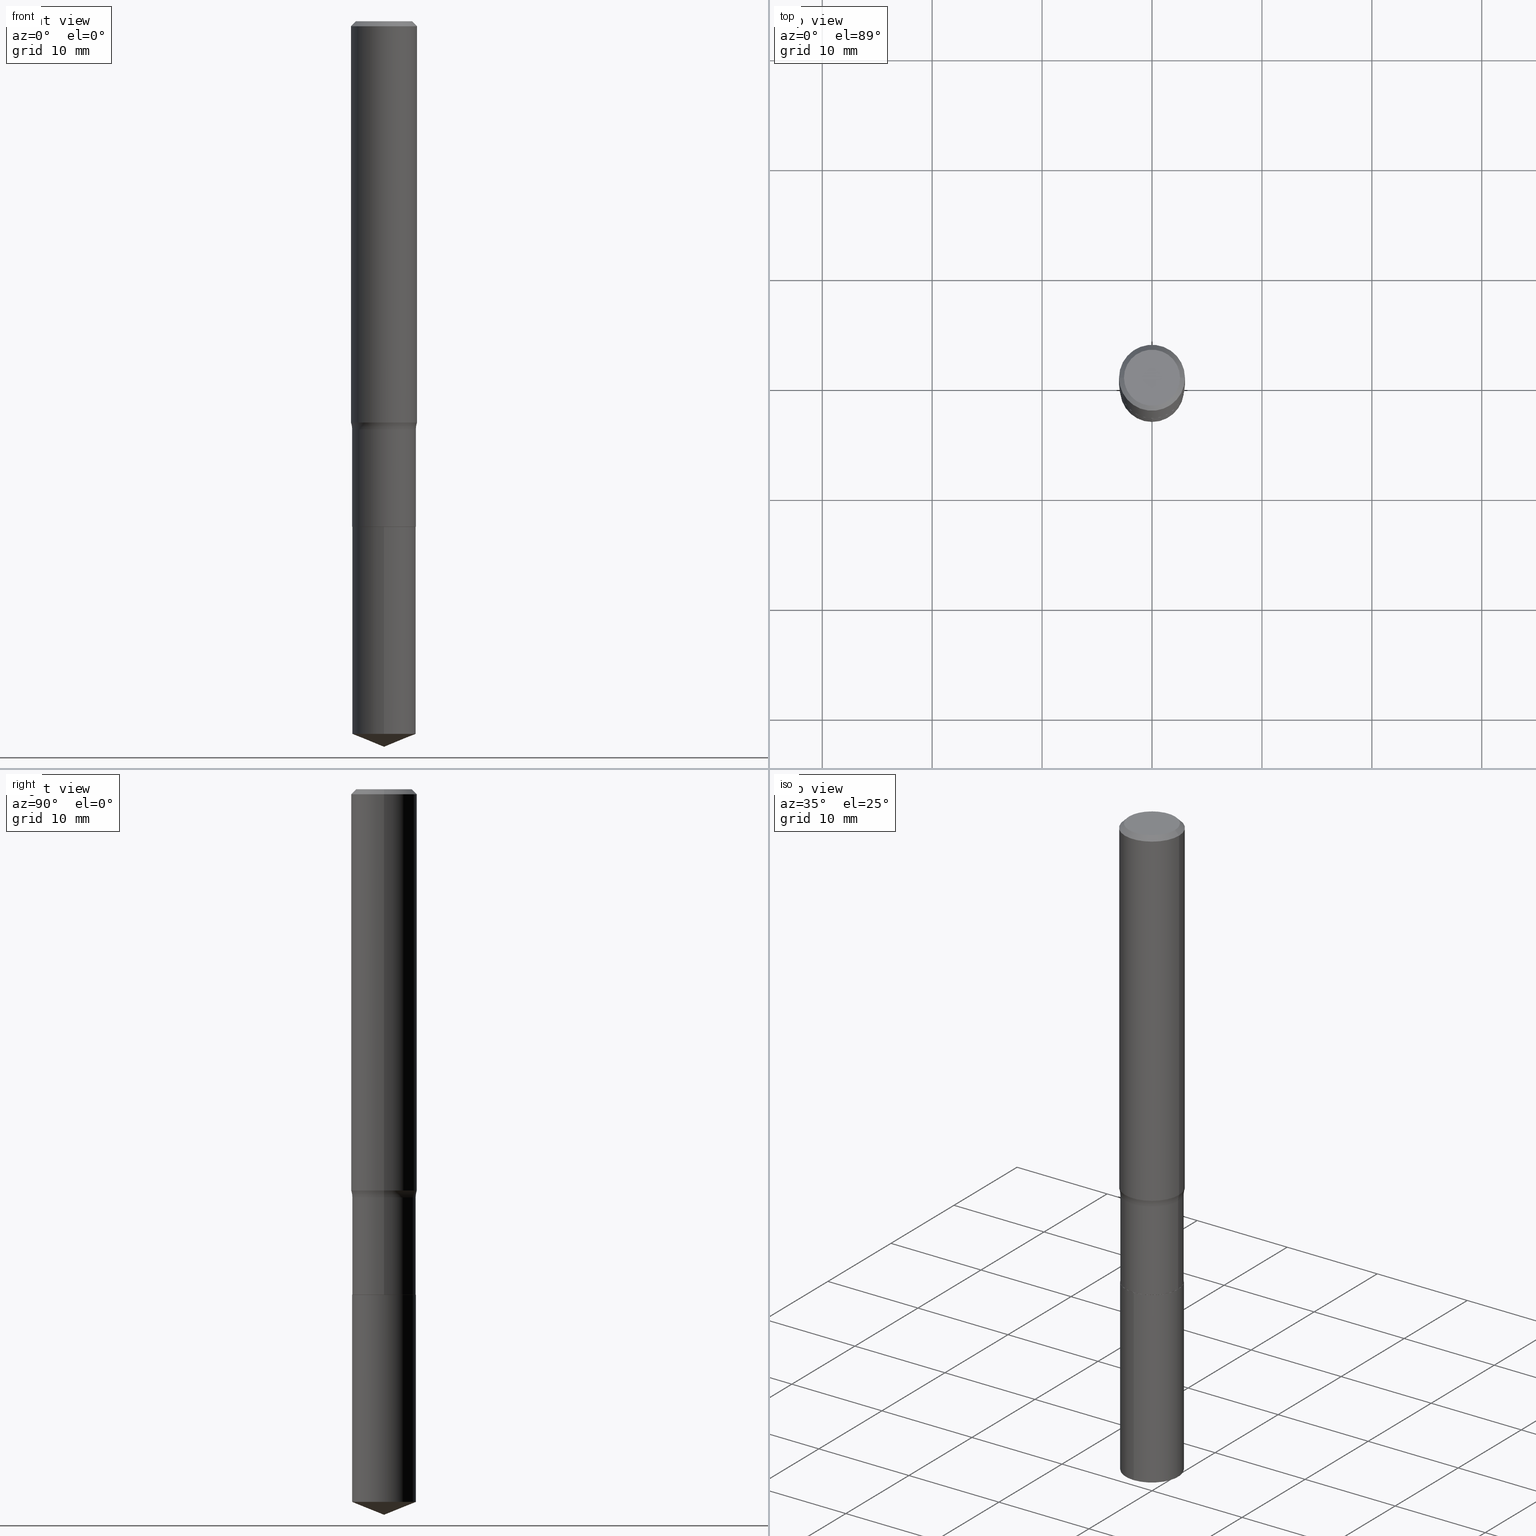
[diagram: canonical four-view strip — front | top / right | iso, engineering-drawing reading convention]
A machine part, canonical four-view strip (front | top / right | iso — engineering-drawing reading convention). The complete STEP part file that produces these views, byte-faithful:
ISO-10303-21;
HEADER;
FILE_DESCRIPTION (( 'STEP AP203' ),
    '1' );
FILE_NAME ('69148.STEP',
    '2024-04-19T17:17:21',
    ( '' ),
    ( '' ),
    'SwSTEP 2.0',
    'SolidWorks 2023',
    '' );
FILE_SCHEMA (( 'CONFIG_CONTROL_DESIGN' ));
ENDSEC;

DATA;
#1 = ORIENTED_EDGE ( 'NONE', *, *, #380, .F. ) ;
#2 = DIRECTION ( 'NONE',  ( 0.7071067811866199593, -2.468850131083015945E-15, 0.7071067811864750752 ) ) ;
#3 = DIRECTION ( 'NONE',  ( 1.000000000000000000, -6.982962677686269077E-15, 0.000000000000000000 ) ) ;
#4 = EDGE_CURVE ( 'NONE', #167, #362, #149, .T. ) ;
#5 = ORIENTED_EDGE ( 'NONE', *, *, #144, .F. ) ;
#6 = CARTESIAN_POINT ( 'NONE',  ( 3.507850874923593654E-46, -5.008281372579124849E-32, -1.434428795841294606E-17 ) ) ;
#7 = ORIENTED_EDGE ( 'NONE', *, *, #485, .T. ) ;
#8 = DESIGN_CONTEXT ( 'detailed design', #341, 'design' ) ;
#9 = ORIENTED_EDGE ( 'NONE', *, *, #208, .T. ) ;
#10 = CARTESIAN_POINT ( 'NONE',  ( 4.427521273598189436E-29, -6.321326963975514491E-15, -1.810499999999999998 ) ) ;
#11 = ORIENTED_EDGE ( 'NONE', *, *, #485, .F. ) ;
#12 = ORIENTED_EDGE ( 'NONE', *, *, #22, .F. ) ;
#13 = CARTESIAN_POINT ( 'NONE',  ( 0.1136500000000000010, -7.116686412963979916E-15, -1.810999999999999943 ) ) ;
#14 = ORIENTED_EDGE ( 'NONE', *, *, #77, .T. ) ;
#15 = PRODUCT ( '69148', '69148', '', ( #99 ) ) ;
#16 = VECTOR ( 'NONE', #481, 39.37007874015748854 ) ;
#17 = AXIS2_PLACEMENT_3D ( 'NONE', #92, #156, #42 ) ;
#18 =( NAMED_UNIT ( * ) PLANE_ANGLE_UNIT ( ) SI_UNIT ( $, .RADIAN. ) );
#19 = EDGE_CURVE ( 'NONE', #165, #320, #316, .T. ) ;
#20 = DIRECTION ( 'NONE',  ( -2.445468806185136877E-29, 3.491481338843145188E-15, 1.000000000000000000 ) ) ;
#21 = COORDINATED_UNIVERSAL_TIME_OFFSET ( 5, 0, .BEHIND. ) ;
#22 = EDGE_CURVE ( 'NONE', #231, #83, #275, .T. ) ;
#23 = LINE ( 'NONE', #477, #330 ) ;
#24 = DATE_TIME_ROLE ( 'creation_date' ) ;
#25 = APPROVAL ( #146, 'UNSPECIFIED' ) ;
#26 = AXIS2_PLACEMENT_3D ( 'NONE', #31, #220, #114 ) ;
#27 = DIRECTION ( 'NONE',  ( -2.431437355357483089E-29, 3.511575175048929728E-15, 1.000000000000000000 ) ) ;
#28 = CYLINDRICAL_SURFACE ( 'NONE', #239, 0.1141500000000000015 ) ;
#29 = DIRECTION ( 'NONE',  ( 1.000000000000000000, -6.982962677686266711E-15, 4.875668750515085695E-29 ) ) ;
#30 = AXIS2_PLACEMENT_3D ( 'NONE', #142, #336, #151 ) ;
#31 = CARTESIAN_POINT ( 'NONE',  ( 4.332147990156996744E-31, -6.185159191760670395E-17, -0.01771500000000010913 ) ) ;
#32 = LOCAL_TIME ( 13, 17, 21.00000000000000000, #374 ) ;
#33 = DIRECTION ( 'NONE',  ( -2.445468806185136597E-29, 3.491481338843145583E-15, 1.000000000000000000 ) ) ;
#34 = DIRECTION ( 'NONE',  ( -2.445468806185136597E-29, 3.491481338843145583E-15, 1.000000000000000000 ) ) ;
#35 = ORIENTED_EDGE ( 'NONE', *, *, #370, .F. ) ;
#36 = CIRCLE ( 'NONE', #302, 0.1003850000000000159 ) ;
#37 = CARTESIAN_POINT ( 'NONE',  ( 4.428744008001282238E-29, -6.323072704644935995E-15, -1.810999999999999943 ) ) ;
#38 = PLANE ( 'NONE',  #357 ) ;
#39 = ORIENTED_EDGE ( 'NONE', *, *, #169, .F. ) ;
#40 = CARTESIAN_POINT ( 'NONE',  ( 4.428744008001282238E-29, -6.323072704644935995E-15, -1.810999999999999943 ) ) ;
#41 = ORIENTED_EDGE ( 'NONE', *, *, #334, .F. ) ;
#42 = DIRECTION ( 'NONE',  ( 1.000000000000000000, -6.982962677686266711E-15, 4.876176775795935793E-29 ) ) ;
#43 = CARTESIAN_POINT ( 'NONE',  ( 3.514854974773711668E-29, -5.018281370886292048E-15, -1.437292909189378687 ) ) ;
#44 = ORIENTED_EDGE ( 'NONE', *, *, #190, .F. ) ;
#45 = CONICAL_SURFACE ( 'NONE', #304, 0.1136500000000000010, 0.7853981633975507526 ) ;
#46 = ORIENTED_EDGE ( 'NONE', *, *, #75, .F. ) ;
#47 = ADVANCED_FACE ( 'NONE', ( #145 ), #329, .T. ) ;
#48 = LINE ( 'NONE', #396, #168 ) ;
#49 = PERSON ( 'UNSPECIFIED', 'UNSPECIFIED', 'UNSPECIFIED', ('UNSPECIFIED'), ('UNSPECIFIED'), ('UNSPECIFIED') ) ;
#50 = ADVANCED_FACE ( 'NONE', ( #68 ), #411, .T. ) ;
#51 = ORIENTED_EDGE ( 'NONE', *, *, #367, .T. ) ;
#52 = APPROVAL_STATUS ( 'not_yet_approved' ) ;
#53 = DATE_AND_TIME ( #254, #462 ) ;
#54 = AXIS2_PLACEMENT_3D ( 'NONE', #211, #113, #175 ) ;
#55 = AXIS2_PLACEMENT_3D ( 'NONE', #381, #33, #345 ) ;
#56 = PERSON_AND_ORGANIZATION ( #49, #313 ) ;
#57 = CARTESIAN_POINT ( 'NONE',  ( -8.938262235057461474E-28, 1.291629041461802011E-13, 36.77167874015748339 ) ) ;
#58 = CC_DESIGN_PERSON_AND_ORGANIZATION_ASSIGNMENT ( #475, #406, ( #15 ) ) ;
#59 = ORIENTED_EDGE ( 'NONE', *, *, #412, .T. ) ;
#60 = DIRECTION ( 'NONE',  ( -2.445468806185136597E-29, 3.491481338843145583E-15, 1.000000000000000000 ) ) ;
#61 = DIRECTION ( 'NONE',  ( -2.445468806185136597E-29, 3.491481338843145583E-15, 1.000000000000000000 ) ) ;
#62 = CARTESIAN_POINT ( 'NONE',  ( 0.1141499999999999598, -7.971051896578870271E-16, 5.566155789571058785E-30 ) ) ;
#63 = PERSON_AND_ORGANIZATION_ROLE ( 'classification_officer' ) ;
#64 = FACE_OUTER_BOUND ( 'NONE', #309, .T. ) ;
#65 = DIMENSIONAL_EXPONENTS ( 1.000000000000000000, 0.000000000000000000, 0.000000000000000000, 0.000000000000000000, 0.000000000000000000, 0.000000000000000000, 0.000000000000000000 ) ;
#66 = AXIS2_PLACEMENT_3D ( 'NONE', #152, #181, #339 ) ;
#67 = AXIS2_PLACEMENT_3D ( 'NONE', #126, #426, #120 ) ;
#68 = FACE_OUTER_BOUND ( 'NONE', #134, .T. ) ;
#69 = DIRECTION ( 'NONE',  ( -6.982962677686265922E-15, -1.000000000000000000, 4.786417860121354194E-15 ) ) ;
#70 = FACE_OUTER_BOUND ( 'NONE', #243, .T. ) ;
#71 = DIRECTION ( 'NONE',  ( -0.7071067811866199593, 7.493145998870616062E-15, 0.7071067811864750752 ) ) ;
#72 = ORIENTED_EDGE ( 'NONE', *, *, #318, .F. ) ;
#73 = CIRCLE ( 'NONE', #187, 0.1181000000000001632 ) ;
#74 = LOCAL_TIME ( 13, 17, 21.00000000000000000, #436 ) ;
#75 = EDGE_CURVE ( 'NONE', #91, #199, #288, .T. ) ;
#76 = DIRECTION ( 'NONE',  ( -6.982962677686264344E-15, -1.000000000000000000, 2.393208930060677491E-15 ) ) ;
#77 = EDGE_CURVE ( 'NONE', #236, #201, #36, .T. ) ;
#78 = AXIS2_PLACEMENT_3D ( 'NONE', #193, #124, #433 ) ;
#79 = VECTOR ( 'NONE', #20, 39.37007874015748143 ) ;
#80 = DIRECTION ( 'NONE',  ( 1.000000000000000000, -6.982962677686266711E-15, 4.876176775795936353E-29 ) ) ;
#81 = CARTESIAN_POINT ( 'NONE',  ( -8.938262235057461474E-28, 1.291629041461802011E-13, 36.77167874015748339 ) ) ;
#82 = ORIENTED_EDGE ( 'NONE', *, *, #472, .T. ) ;
#83 = VERTEX_POINT ( 'NONE', #250 ) ;
#84 = DIRECTION ( 'NONE',  ( 2.431437355357483089E-29, -3.511575175048929728E-15, -1.000000000000000000 ) ) ;
#85 = FACE_OUTER_BOUND ( 'NONE', #191, .T. ) ;
#86 = CYLINDRICAL_SURFACE ( 'NONE', #78, 0.1141500000000000015 ) ;
#87 = VERTEX_POINT ( 'NONE', #298 ) ;
#88 = CC_DESIGN_DATE_AND_TIME_ASSIGNMENT ( #333, #244, ( #257 ) ) ;
#89 = FACE_OUTER_BOUND ( 'NONE', #459, .T. ) ;
#90 = CARTESIAN_POINT ( 'NONE',  ( 4.428744008001282238E-29, -6.323072704644935995E-15, -1.810999999999999943 ) ) ;
#91 = VERTEX_POINT ( 'NONE', #219 ) ;
#92 = CARTESIAN_POINT ( 'NONE',  ( 0.000000000000000000, 0.000000000000000000, 0.000000000000000000 ) ) ;
#93 = CIRCLE ( 'NONE', #216, 0.1141500000000000015 ) ;
#94 = ORIENTED_EDGE ( 'NONE', *, *, #185, .F. ) ;
#95 = ORIENTED_EDGE ( 'NONE', *, *, #491, .F. ) ;
#96 = AXIS2_PLACEMENT_3D ( 'NONE', #43, #310, #460 ) ;
#97 = CARTESIAN_POINT ( 'NONE',  ( 6.317846824160882656E-29, -9.124476934847141705E-15, -2.598399999999999821 ) ) ;
#98 = ORIENTED_EDGE ( 'NONE', *, *, #449, .F. ) ;
#99 = MECHANICAL_CONTEXT ( 'NONE', #482, 'mechanical' ) ;
#100 = UNCERTAINTY_MEASURE_WITH_UNIT (LENGTH_MEASURE( 1.000000000000000082E-05 ), #251, 'distance_accuracy_value', 'NONE');
#101 =( NAMED_UNIT ( * ) SI_UNIT ( $, .STERADIAN. ) SOLID_ANGLE_UNIT ( ) );
#102 = CARTESIAN_POINT ( 'NONE',  ( 0.1136500000000000010, -7.116686412963979916E-15, -1.810999999999999943 ) ) ;
#103 = APPROVAL_DATE_TIME ( #204, #25 ) ;
#104 = CIRCLE ( 'NONE', #439, 0.1141500000000000015 ) ;
#105 = CARTESIAN_POINT ( 'NONE',  ( 3.574786300881431790E-29, -5.103847421120908993E-15, -1.461799999999999766 ) ) ;
#106 = AXIS2_PLACEMENT_3D ( 'NONE', #359, #163, #317 ) ;
#107 = DIRECTION ( 'NONE',  ( -6.474490251793195195E-15, -0.9271838545667886455, 0.3746065934159090727 ) ) ;
#108 = ORIENTED_EDGE ( 'NONE', *, *, #412, .F. ) ;
#109 = SHAPE_DEFINITION_REPRESENTATION ( #135, #413 ) ;
#110 = DIRECTION ( 'NONE',  ( 1.000000000000000000, 0.000000000000000000, 0.000000000000000000 ) ) ;
#111 = ADVANCED_FACE ( 'NONE', ( #448 ), #476, .T. ) ;
#112 = CARTESIAN_POINT ( 'NONE',  ( 8.110845328702167912E-16, 0.1141499999999911197, -2.552280406320917905 ) ) ;
#113 = DIRECTION ( 'NONE',  ( -2.445468806185136597E-29, 3.491481338843145583E-15, 1.000000000000000000 ) ) ;
#114 = DIRECTION ( 'NONE',  ( -1.000000000000000000, 6.982962677686266711E-15, 0.000000000000000000 ) ) ;
#115 = DIRECTION ( 'NONE',  ( -2.431437355357483089E-29, 3.511575175048930123E-15, 1.000000000000000000 ) ) ;
#116 = ADVANCED_FACE ( 'NONE', ( #375 ), #28, .T. ) ;
#117 = DIRECTION ( 'NONE',  ( 1.000000000000000000, -6.982962677686264344E-15, 0.000000000000000000 ) ) ;
#118 = DIRECTION ( 'NONE',  ( -6.982962677686265922E-15, -1.000000000000000000, 4.786417860121354194E-15 ) ) ;
#119 = EDGE_LOOP ( 'NONE', ( #12, #478, #238, #95 ) ) ;
#120 = DIRECTION ( 'NONE',  ( 1.000000000000000000, -6.982962677686268288E-15, 0.000000000000000000 ) ) ;
#121 = ORIENTED_EDGE ( 'NONE', *, *, #308, .F. ) ;
#122 = VECTOR ( 'NONE', #467, 39.37007874015748143 ) ;
#123 = AXIS2_PLACEMENT_3D ( 'NONE', #325, #444, #110 ) ;
#124 = DIRECTION ( 'NONE',  ( -2.431437355357483089E-29, 3.511575175048930123E-15, 1.000000000000000000 ) ) ;
#125 = CARTESIAN_POINT ( 'NONE',  ( 0.1181000000000000799, -8.246878922347486570E-16, 5.758764772215004644E-30 ) ) ;
#126 = CARTESIAN_POINT ( 'NONE',  ( 3.574786300881431790E-29, -5.103847421120908993E-15, -1.461799999999999766 ) ) ;
#127 = CARTESIAN_POINT ( 'NONE',  ( 0.1141499999999999460, -5.900952610778795922E-15, -1.461799999999999766 ) ) ;
#128 = ORIENTED_EDGE ( 'NONE', *, *, #464, .T. ) ;
#129 = CARTESIAN_POINT ( 'NONE',  ( 0.000000000000000000, 0.000000000000000000, 0.000000000000000000 ) ) ;
#130 = ORIENTED_EDGE ( 'NONE', *, *, #449, .T. ) ;
#131 = APPROVAL ( #287, 'UNSPECIFIED' ) ;
#132 = CARTESIAN_POINT ( 'NONE',  ( 0.1180999999999999966, -8.865394841523547570E-16, -0.01771500000000010913 ) ) ;
#133 = CC_DESIGN_APPROVAL ( #131, ( #466 ) ) ;
#134 = EDGE_LOOP ( 'NONE', ( #205, #455, #458, #431 ) ) ;
#135 = PRODUCT_DEFINITION_SHAPE ( 'NONE', 'NONE',  #466 ) ;
#136 = ORIENTED_EDGE ( 'NONE', *, *, #284, .F. ) ;
#137 = DIRECTION ( 'NONE',  ( -6.982962677686264344E-15, -1.000000000000000000, 2.393208930060677491E-15 ) ) ;
#138 = ORIENTED_EDGE ( 'NONE', *, *, #308, .T. ) ;
#139 = COORDINATED_UNIVERSAL_TIME_OFFSET ( 5, 0, .BEHIND. ) ;
#140 = AXIS2_PLACEMENT_3D ( 'NONE', #279, #352, #390 ) ;
#141 = CC_DESIGN_SECURITY_CLASSIFICATION ( #257, ( #379 ) ) ;
#142 = CARTESIAN_POINT ( 'NONE',  ( -0.1921499999999999597, -3.738539554357876969E-15, -1.461799999999999766 ) ) ;
#143 = PERSON_AND_ORGANIZATION ( #49, #313 ) ;
#144 = EDGE_CURVE ( 'NONE', #165, #231, #73, .T. ) ;
#145 = FACE_OUTER_BOUND ( 'NONE', #186, .T. ) ;
#146 = APPROVAL_STATUS ( 'not_yet_approved' ) ;
#147 = CARTESIAN_POINT ( 'NONE',  ( -0.1141499999999999598, 8.110845328701540768E-16, -5.614964405525973270E-30 ) ) ;
#148 = MANIFOLD_SOLID_BREP ( 'Body-Move/Copy2[2]', #280 ) ;
#149 = CIRCLE ( 'NONE', #182, 0.1141500000000000015 ) ;
#150 = AXIS2_PLACEMENT_3D ( 'NONE', #264, #34, #492 ) ;
#151 = DIRECTION ( 'NONE',  ( -1.000000000000000000, 7.105427357601005014E-15, 0.000000000000000000 ) ) ;
#152 = CARTESIAN_POINT ( 'NONE',  ( 3.574786300881431790E-29, -5.103847421120908993E-15, -1.461799999999999766 ) ) ;
#153 = DIRECTION ( 'NONE',  ( 1.000000000000000000, -6.982962677686270655E-15, 0.000000000000000000 ) ) ;
#154 = AXIS2_PLACEMENT_3D ( 'NONE', #343, #451, #415 ) ;
#155 = ORIENTED_EDGE ( 'NONE', *, *, #213, .T. ) ;
#156 = DIRECTION ( 'NONE',  ( -2.445468806185136597E-29, 3.491481338843145583E-15, 1.000000000000000000 ) ) ;
#157 = DIRECTION ( 'NONE',  ( -1.000000000000000000, 6.982962677686266711E-15, 0.000000000000000000 ) ) ;
#158 = ORIENTED_EDGE ( 'NONE', *, *, #208, .F. ) ;
#159 = APPROVAL_PERSON_ORGANIZATION ( #408, #25, #400 ) ;
#160 = DIRECTION ( 'NONE',  ( -1.000000000000000000, 6.982962677686265922E-15, -4.876176775795935793E-29 ) ) ;
#161 = CARTESIAN_POINT ( 'NONE',  ( 4.428744008001282238E-29, -6.323072704644935995E-15, -1.810999999999999943 ) ) ;
#162 = ADVANCED_FACE ( 'NONE', ( #64 ), #365, .F. ) ;
#163 = DIRECTION ( 'NONE',  ( -2.445468806185136597E-29, 3.491481338843145583E-15, 1.000000000000000000 ) ) ;
#164 = EDGE_LOOP ( 'NONE', ( #1, #155, #429, #354 ) ) ;
#165 = VERTEX_POINT ( 'NONE', #409 ) ;
#166 = CARTESIAN_POINT ( 'NONE',  ( 4.428744008001282238E-29, -6.323072704644935995E-15, -1.810999999999999943 ) ) ;
#167 = VERTEX_POINT ( 'NONE', #486 ) ;
#168 = VECTOR ( 'NONE', #188, 39.37007874015748143 ) ;
#169 = EDGE_CURVE ( 'NONE', #278, #382, #405, .T. ) ;
#170 = DATE_AND_TIME ( #437, #402 ) ;
#171 = APPROVAL_ROLE ( '' ) ;
#172 = DIRECTION ( 'NONE',  ( -6.982962677686265133E-15, -1.000000000000000000, 3.498761904101767999E-15 ) ) ;
#173 = APPLICATION_PROTOCOL_DEFINITION ( 'international standard', 'config_control_design', 1994, #482 ) ;
#174 = VECTOR ( 'NONE', #376, 39.37007874015748143 ) ;
#175 = DIRECTION ( 'NONE',  ( 1.000000000000000000, -6.982962677686266711E-15, 4.876176775795935793E-29 ) ) ;
#176 = DIRECTION ( 'NONE',  ( -2.445468806185136597E-29, 3.491481338843145583E-15, 1.000000000000000000 ) ) ;
#177 = PERSON_AND_ORGANIZATION_ROLE ( 'design_supplier' ) ;
#178 = CC_DESIGN_PERSON_AND_ORGANIZATION_ASSIGNMENT ( #435, #63, ( #257 ) ) ;
#179 = DIRECTION ( 'NONE',  ( 1.000000000000000000, -6.982962677686269077E-15, 0.000000000000000000 ) ) ;
#180 = CARTESIAN_POINT ( 'NONE',  ( 4.428744008001282238E-29, -6.323072704644935995E-15, -1.810999999999999943 ) ) ;
#181 = DIRECTION ( 'NONE',  ( -2.445468806185136597E-29, 3.491481338843145583E-15, 1.000000000000000000 ) ) ;
#182 = AXIS2_PLACEMENT_3D ( 'NONE', #161, #463, #76 ) ;
#183 = VECTOR ( 'NONE', #27, 39.37007874015748143 ) ;
#184 = DIRECTION ( 'NONE',  ( -6.982962677686266711E-15, -1.000000000000000000, 3.491481338843145583E-15 ) ) ;
#185 = EDGE_CURVE ( 'NONE', #389, #199, #461, .T. ) ;
#186 = EDGE_LOOP ( 'NONE', ( #35, #286, #98 ) ) ;
#187 = AXIS2_PLACEMENT_3D ( 'NONE', #438, #337, #445 ) ;
#188 = DIRECTION ( 'NONE',  ( -2.431437355357483089E-29, 3.511575175048929728E-15, 1.000000000000000000 ) ) ;
#189 = CARTESIAN_POINT ( 'NONE',  ( -7.971051896578252001E-16, -0.1141500000000089804, -2.552280406320917017 ) ) ;
#190 = EDGE_CURVE ( 'NONE', #236, #320, #488, .T. ) ;
#191 = EDGE_LOOP ( 'NONE', ( #138, #232, #423, #72 ) ) ;
#192 = ORIENTED_EDGE ( 'NONE', *, *, #262, .T. ) ;
#193 = CARTESIAN_POINT ( 'NONE',  ( 4.428744008001282238E-29, -6.323072704644935995E-15, -1.810999999999999943 ) ) ;
#194 = ORIENTED_EDGE ( 'NONE', *, *, #22, .T. ) ;
#195 = VECTOR ( 'NONE', #2, 39.37007874015748143 ) ;
#196 = CC_DESIGN_DATE_AND_TIME_ASSIGNMENT ( #53, #24, ( #466 ) ) ;
#197 = CYLINDRICAL_SURFACE ( 'NONE', #106, 0.1181000000000000799 ) ;
#198 = DIRECTION ( 'NONE',  ( -6.982962677686264344E-15, -1.000000000000000000, 2.393208930060677491E-15 ) ) ;
#199 = VERTEX_POINT ( 'NONE', #218 ) ;
#200 = EDGE_CURVE ( 'NONE', #91, #292, #93, .T. ) ;
#201 = VERTEX_POINT ( 'NONE', #377 ) ;
#202 = VECTOR ( 'NONE', #384, 39.37007874015748854 ) ;
#203 = ORIENTED_EDGE ( 'NONE', *, *, #491, .T. ) ;
#204 = DATE_AND_TIME ( #246, #447 ) ;
#205 = ORIENTED_EDGE ( 'NONE', *, *, #480, .F. ) ;
#206 = SECURITY_CLASSIFICATION_LEVEL ( 'unclassified' ) ;
#207 = CARTESIAN_POINT ( 'NONE',  ( 6.369114387261840438E-29, -9.051697060109789399E-15, -2.598399999999999821 ) ) ;
#208 = EDGE_CURVE ( 'NONE', #231, #199, #430, .T. ) ;
#209 = ORIENTED_EDGE ( 'NONE', *, *, #185, .T. ) ;
#210 = PERSON_AND_ORGANIZATION ( #49, #313 ) ;
#211 = CARTESIAN_POINT ( 'NONE',  ( 0.000000000000000000, 0.000000000000000000, 0.000000000000000000 ) ) ;
#212 = LINE ( 'NONE', #372, #183 ) ;
#213 = EDGE_CURVE ( 'NONE', #382, #434, #323, .T. ) ;
#214 = AXIS2_PLACEMENT_3D ( 'NONE', #253, #61, #260 ) ;
#215 = APPROVAL_DATE_TIME ( #170, #131 ) ;
#216 = AXIS2_PLACEMENT_3D ( 'NONE', #259, #176, #117 ) ;
#217 = AXIS2_PLACEMENT_3D ( 'NONE', #340, #184, #153 ) ;
#218 = CARTESIAN_POINT ( 'NONE',  ( -0.1141499999999999460, -4.901502659678057961E-15, -1.461799999999999766 ) ) ;
#219 = CARTESIAN_POINT ( 'NONE',  ( -0.1141499999999999737, -4.901502659678057961E-15, -1.810499999999999998 ) ) ;
#220 = DIRECTION ( 'NONE',  ( 2.445468806185136597E-29, -3.491481338843145583E-15, -1.000000000000000000 ) ) ;
#221 = ADVANCED_FACE ( 'NONE', ( #446 ), #229, .F. ) ;
#222 = CARTESIAN_POINT ( 'NONE',  ( 7.015701749847187307E-46, -1.001656274515824970E-31, -2.868857591682589212E-17 ) ) ;
#223 = FACE_OUTER_BOUND ( 'NONE', #164, .T. ) ;
#224 = CONICAL_SURFACE ( 'NONE', #290, 0.1180999999999999966, 0.7853981633974456145 ) ;
#225 = APPROVAL_PERSON_ORGANIZATION ( #398, #285, #171 ) ;
#226 = ADVANCED_FACE ( 'NONE', ( #70 ), #378, .T. ) ;
#227 = ORIENTED_EDGE ( 'NONE', *, *, #472, .F. ) ;
#228 = CARTESIAN_POINT ( 'NONE',  ( -0.1180999999999999966, 7.628363003171413738E-16, -0.01771500000000010913 ) ) ;
#229 = TOROIDAL_SURFACE ( 'NONE', #214, 0.1921499999999999597, 0.07799999999999999989 ) ;
#230 = CIRCLE ( 'NONE', #67, 0.1141499999999999460 ) ;
#231 = VERTEX_POINT ( 'NONE', #332 ) ;
#232 = ORIENTED_EDGE ( 'NONE', *, *, #480, .T. ) ;
#233 = ADVANCED_FACE ( 'NONE', ( #223 ), #86, .T. ) ;
#234 = DIRECTION ( 'NONE',  ( 6.982962677686265922E-15, 1.000000000000000000, -3.511575175048929728E-15 ) ) ;
#235 = CARTESIAN_POINT ( 'NONE',  ( 6.231120878724535395E-29, -8.926134577231654880E-15, -2.552280406320917461 ) ) ;
#236 = VERTEX_POINT ( 'NONE', #242 ) ;
#237 = CARTESIAN_POINT ( 'NONE',  ( 8.110845328702166926E-16, 0.1141499999999936732, -1.811000000000000165 ) ) ;
#238 = ORIENTED_EDGE ( 'NONE', *, *, #19, .T. ) ;
#239 = AXIS2_PLACEMENT_3D ( 'NONE', #180, #296, #137 ) ;
#240 = DIRECTION ( 'NONE',  ( -2.445468806185136597E-29, 3.491481338843145583E-15, 1.000000000000000000 ) ) ;
#241 = ORIENTED_EDGE ( 'NONE', *, *, #274, .T. ) ;
#242 = CARTESIAN_POINT ( 'NONE',  ( 0.1003850000000000159, -7.803837484803599345E-16, -2.868857591682071522E-17 ) ) ;
#243 = EDGE_LOOP ( 'NONE', ( #44, #227, #59, #203 ) ) ;
#244 = DATE_TIME_ROLE ( 'classification_date' ) ;
#245 = EDGE_LOOP ( 'NONE', ( #322, #9, #355, #353 ) ) ;
#246 = CALENDAR_DATE ( 2024, 19, 4 ) ;
#247 = CC_DESIGN_APPROVAL ( #25, ( #379 ) ) ;
#248 = PERSON_AND_ORGANIZATION_ROLE ( 'creator' ) ;
#249 = APPROVAL_ROLE ( '' ) ;
#250 = CARTESIAN_POINT ( 'NONE',  ( -0.1180999999999999966, -1.700915510469269743E-15, -0.01771500000000010913 ) ) ;
#251 =( CONVERSION_BASED_UNIT ( 'INCH', #410 ) LENGTH_UNIT ( ) NAMED_UNIT ( #65 ) );
#252 = CC_DESIGN_PERSON_AND_ORGANIZATION_ASSIGNMENT ( #210, #248, ( #379 ) ) ;
#253 = CARTESIAN_POINT ( 'NONE',  ( 3.574786300881431790E-29, -5.103847421120908993E-15, -1.461799999999999766 ) ) ;
#254 = CALENDAR_DATE ( 2024, 19, 4 ) ;
#255 = DIRECTION ( 'NONE',  ( -2.445468806185136597E-29, 3.491481338843145583E-15, 1.000000000000000000 ) ) ;
#256 = AXIS2_PLACEMENT_3D ( 'NONE', #10, #276, #282 ) ;
#257 = SECURITY_CLASSIFICATION ( '', '', #206 ) ;
#258 = ADVANCED_FACE ( 'NONE', ( #272 ), #419, .F. ) ;
#259 = CARTESIAN_POINT ( 'NONE',  ( 4.427521273598189436E-29, -6.321326963975514491E-15, -1.810499999999999998 ) ) ;
#260 = DIRECTION ( 'NONE',  ( 1.000000000000000000, -6.982962677686265922E-15, 4.883557194083112901E-29 ) ) ;
#261 = LINE ( 'NONE', #305, #373 ) ;
#262 = EDGE_CURVE ( 'NONE', #362, #167, #104, .T. ) ;
#263 = CLOSED_SHELL ( 'NONE', ( #116, #47, #407, #233, #303 ) ) ;
#264 = CARTESIAN_POINT ( 'NONE',  ( 7.015701749847187307E-46, -1.001656274515824970E-31, -2.868857591682589212E-17 ) ) ;
#265 =( GEOMETRIC_REPRESENTATION_CONTEXT ( 3 ) GLOBAL_UNCERTAINTY_ASSIGNED_CONTEXT ( ( #100 ) ) GLOBAL_UNIT_ASSIGNED_CONTEXT ( ( #251, #18, #101 ) ) REPRESENTATION_CONTEXT ( 'NONE', 'WORKASPACE' ) );
#266 = CC_DESIGN_PERSON_AND_ORGANIZATION_ASSIGNMENT ( #56, #177, ( #379 ) ) ;
#267 = DIRECTION ( 'NONE',  ( -2.431437355357483089E-29, 3.511575175048930123E-15, 1.000000000000000000 ) ) ;
#268 = EDGE_LOOP ( 'NONE', ( #82, #14 ) ) ;
#269 = FACE_OUTER_BOUND ( 'NONE', #395, .T. ) ;
#270 = FACE_OUTER_BOUND ( 'NONE', #388, .T. ) ;
#271 = CIRCLE ( 'NONE', #55, 0.1180999999999999966 ) ;
#272 = FACE_OUTER_BOUND ( 'NONE', #268, .T. ) ;
#273 = DIRECTION ( 'NONE',  ( -6.982962677686265133E-15, -1.000000000000000000, 3.498761904101767999E-15 ) ) ;
#274 = EDGE_CURVE ( 'NONE', #292, #91, #479, .T. ) ;
#275 = LINE ( 'NONE', #342, #371 ) ;
#276 = DIRECTION ( 'NONE',  ( -2.445468806185136597E-29, 3.491481338843145583E-15, 1.000000000000000000 ) ) ;
#277 = PLANE ( 'NONE',  #291 ) ;
#278 = VERTEX_POINT ( 'NONE', #97 ) ;
#279 = CARTESIAN_POINT ( 'NONE',  ( 4.428744008001282238E-29, -6.323072704644935995E-15, -1.810999999999999943 ) ) ;
#280 = CLOSED_SHELL ( 'NONE', ( #416, #297, #364, #221, #327, #111, #162, #289, #226, #258, #399, #50 ) ) ;
#281 = APPROVAL_PERSON_ORGANIZATION ( #143, #131, #249 ) ;
#282 = DIRECTION ( 'NONE',  ( 1.000000000000000000, -6.982962677686264344E-15, 0.000000000000000000 ) ) ;
#283 = ORIENTED_EDGE ( 'NONE', *, *, #367, .F. ) ;
#284 = EDGE_CURVE ( 'NONE', #434, #167, #48, .T. ) ;
#285 = APPROVAL ( #52, 'UNSPECIFIED' ) ;
#286 = ORIENTED_EDGE ( 'NONE', *, *, #169, .T. ) ;
#287 = APPROVAL_STATUS ( 'not_yet_approved' ) ;
#288 = LINE ( 'NONE', #147, #174 ) ;
#289 = ADVANCED_FACE ( 'NONE', ( #424 ), #321, .T. ) ;
#290 = AXIS2_PLACEMENT_3D ( 'NONE', #349, #361, #157 ) ;
#291 = AXIS2_PLACEMENT_3D ( 'NONE', #90, #457, #454 ) ;
#292 = VERTEX_POINT ( 'NONE', #428 ) ;
#293 = PERSON_AND_ORGANIZATION_ROLE ( 'creator' ) ;
#294 = DIRECTION ( 'NONE',  ( -2.431437355357483089E-29, 3.511575175048930123E-15, 1.000000000000000000 ) ) ;
#295 = COORDINATED_UNIVERSAL_TIME_OFFSET ( 5, 0, .BEHIND. ) ;
#296 = DIRECTION ( 'NONE',  ( -2.431437355357483089E-29, 3.511575175048930123E-15, 1.000000000000000000 ) ) ;
#297 = ADVANCED_FACE ( 'NONE', ( #89 ), #224, .T. ) ;
#298 = CARTESIAN_POINT ( 'NONE',  ( -0.1136500000000000010, -5.512891658279470728E-15, -1.810999999999999943 ) ) ;
#299 = CIRCLE ( 'NONE', #150, 0.1003850000000000159 ) ;
#300 = DIRECTION ( 'NONE',  ( 1.000000000000000000, -6.982962677686265922E-15, 4.883557194083112901E-29 ) ) ;
#301 = CARTESIAN_POINT ( 'NONE',  ( 0.1180999999999999966, -8.720764054544245267E-16, -0.01771500000000010913 ) ) ;
#302 = AXIS2_PLACEMENT_3D ( 'NONE', #222, #443, #29 ) ;
#303 = ADVANCED_FACE ( 'NONE', ( #269 ), #38, .F. ) ;
#304 = AXIS2_PLACEMENT_3D ( 'NONE', #37, #350, #3 ) ;
#305 = CARTESIAN_POINT ( 'NONE',  ( -0.1136500000000000010, -5.515540885453581929E-15, -1.810999999999999943 ) ) ;
#306 = ORIENTED_EDGE ( 'NONE', *, *, #190, .T. ) ;
#307 = DIRECTION ( 'NONE',  ( -2.445468806185136597E-29, 3.491481338843145583E-15, 1.000000000000000000 ) ) ;
#308 = EDGE_CURVE ( 'NONE', #368, #87, #421, .T. ) ;
#309 = EDGE_LOOP ( 'NONE', ( #158, #5, #128, #209 ) ) ;
#310 = DIRECTION ( 'NONE',  ( -2.445468806185136597E-29, 3.491481338843145583E-15, 1.000000000000000000 ) ) ;
#311 = ORIENTED_EDGE ( 'NONE', *, *, #144, .T. ) ;
#312 = AXIS2_PLACEMENT_3D ( 'NONE', #484, #115, #69 ) ;
#313 = ORGANIZATION ( 'UNSPECIFIED', 'UNSPECIFIED', '' ) ;
#314 = LINE ( 'NONE', #13, #195 ) ;
#315 = MANIFOLD_SOLID_BREP ( 'Body-Move/Copy2[1]', #263 ) ;
#316 = LINE ( 'NONE', #125, #122 ) ;
#317 = DIRECTION ( 'NONE',  ( 1.000000000000000000, -6.982962677686266711E-15, 4.876176775795936353E-29 ) ) ;
#318 = EDGE_CURVE ( 'NONE', #368, #292, #314, .T. ) ;
#319 = ORIENTED_EDGE ( 'NONE', *, *, #4, .T. ) ;
#320 = VERTEX_POINT ( 'NONE', #132 ) ;
#321 = CYLINDRICAL_SURFACE ( 'NONE', #385, 0.1181000000000000799 ) ;
#322 = ORIENTED_EDGE ( 'NONE', *, *, #383, .F. ) ;
#323 = CIRCLE ( 'NONE', #312, 0.1141500000000000153 ) ;
#324 = ORIENTED_EDGE ( 'NONE', *, *, #77, .F. ) ;
#325 = CARTESIAN_POINT ( 'NONE',  ( 0.000000000000000000, 0.000000000000000000, 0.000000000000000000 ) ) ;
#326 = CARTESIAN_POINT ( 'NONE',  ( 4.428744008001282238E-29, -6.323072704644935995E-15, -1.810999999999999943 ) ) ;
#327 = ADVANCED_FACE ( 'NONE', ( #356 ), #465, .T. ) ;
#328 = CALENDAR_DATE ( 2024, 19, 4 ) ;
#329 = CONICAL_SURFACE ( 'NONE', #452, 97.44436430773008340, 1.186823891356150851 ) ;
#330 = VECTOR ( 'NONE', #107, 39.37007874015748143 ) ;
#331 = APPROVAL_DATE_TIME ( #442, #285 ) ;
#332 = CARTESIAN_POINT ( 'NONE',  ( -0.1181000000000001354, -4.179130399953612273E-15, -1.437292909189378687 ) ) ;
#333 = DATE_AND_TIME ( #369, #32 ) ;
#334 = EDGE_CURVE ( 'NONE', #87, #368, #490, .T. ) ;
#335 =( LENGTH_UNIT ( ) NAMED_UNIT ( * ) SI_UNIT ( $, .METRE. ) );
#336 = DIRECTION ( 'NONE',  ( 7.105427357601001859E-15, 1.000000000000000000, -3.491481338843145583E-15 ) ) ;
#337 = DIRECTION ( 'NONE',  ( -2.445468806185136597E-29, 3.491481338843145583E-15, 1.000000000000000000 ) ) ;
#338 = VECTOR ( 'NONE', #450, 39.37007874015748854 ) ;
#339 = DIRECTION ( 'NONE',  ( 1.000000000000000000, -6.982962677686268288E-15, 0.000000000000000000 ) ) ;
#340 = CARTESIAN_POINT ( 'NONE',  ( 0.1921499999999999597, -6.445623699638325546E-15, -1.461799999999999766 ) ) ;
#341 = APPLICATION_CONTEXT ( 'configuration controlled 3d designs of mechanical parts and assemblies' ) ;
#342 = CARTESIAN_POINT ( 'NONE',  ( -0.1181000000000000799, 8.391509709326788873E-16, -5.809262341591047988E-30 ) ) ;
#343 = CARTESIAN_POINT ( 'NONE',  ( 4.332147990156996744E-31, -6.185159191760670395E-17, -0.01771500000000010913 ) ) ;
#344 = DIRECTION ( 'NONE',  ( -2.445468806185136877E-29, 3.491481338843145188E-15, 1.000000000000000000 ) ) ;
#345 = DIRECTION ( 'NONE',  ( 1.000000000000000000, -6.982962677686266711E-15, 0.000000000000000000 ) ) ;
#346 = CIRCLE ( 'NONE', #217, 0.07799999999999999989 ) ;
#347 = ORIENTED_EDGE ( 'NONE', *, *, #4, .F. ) ;
#348 = EDGE_CURVE ( 'NONE', #199, #389, #230, .T. ) ;
#349 = CARTESIAN_POINT ( 'NONE',  ( 4.332147990156996744E-31, -6.185159191760670395E-17, -0.01771500000000010913 ) ) ;
#350 = DIRECTION ( 'NONE',  ( -2.445468806185136597E-29, 3.491481338843145583E-15, 1.000000000000000000 ) ) ;
#351 = ORIENTED_EDGE ( 'NONE', *, *, #380, .T. ) ;
#352 = DIRECTION ( 'NONE',  ( -2.445468806185136597E-29, 3.491481338843145583E-15, 1.000000000000000000 ) ) ;
#353 = ORIENTED_EDGE ( 'NONE', *, *, #464, .F. ) ;
#354 = ORIENTED_EDGE ( 'NONE', *, *, #262, .F. ) ;
#355 = ORIENTED_EDGE ( 'NONE', *, *, #348, .T. ) ;
#356 = FACE_OUTER_BOUND ( 'NONE', #360, .T. ) ;
#357 = AXIS2_PLACEMENT_3D ( 'NONE', #471, #84, #234 ) ;
#358 = CC_DESIGN_APPROVAL ( #285, ( #257 ) ) ;
#359 = CARTESIAN_POINT ( 'NONE',  ( 0.000000000000000000, 0.000000000000000000, 0.000000000000000000 ) ) ;
#360 = EDGE_LOOP ( 'NONE', ( #241, #474, #94, #283 ) ) ;
#361 = DIRECTION ( 'NONE',  ( 2.445468806185136597E-29, -3.491481338843145583E-15, -1.000000000000000000 ) ) ;
#362 = VERTEX_POINT ( 'NONE', #237 ) ;
#363 = PRODUCT_RELATED_PRODUCT_CATEGORY ( 'detail', '', ( #15 ) ) ;
#364 = ADVANCED_FACE ( 'NONE', ( #393 ), #197, .T. ) ;
#365 = TOROIDAL_SURFACE ( 'NONE', #473, 0.1921499999999999597, 0.07799999999999999989 ) ;
#366 = AXIS2_PLACEMENT_3D ( 'NONE', #235, #391, #118 ) ;
#367 = EDGE_CURVE ( 'NONE', #292, #389, #468, .T. ) ;
#368 = VERTEX_POINT ( 'NONE', #102 ) ;
#369 = CALENDAR_DATE ( 2024, 19, 4 ) ;
#370 = EDGE_CURVE ( 'NONE', #278, #434, #23, .T. ) ;
#371 = VECTOR ( 'NONE', #344, 39.37007874015748143 ) ;
#372 = CARTESIAN_POINT ( 'NONE',  ( 8.110845328701984502E-16, 0.1141499999999936732, -1.811000000000000165 ) ) ;
#373 = VECTOR ( 'NONE', #71, 39.37007874015748143 ) ;
#374 = COORDINATED_UNIVERSAL_TIME_OFFSET ( 5, 0, .BEHIND. ) ;
#375 = FACE_OUTER_BOUND ( 'NONE', #387, .T. ) ;
#376 = DIRECTION ( 'NONE',  ( -2.445468806185136877E-29, 3.491481338843145188E-15, 1.000000000000000000 ) ) ;
#377 = CARTESIAN_POINT ( 'NONE',  ( -0.1003850000000000159, 7.319105043583386689E-16, -2.868857591683090262E-17 ) ) ;
#378 = CONICAL_SURFACE ( 'NONE', #26, 0.1180999999999999966, 0.7853981633974456145 ) ;
#379 = PRODUCT_DEFINITION_FORMATION_WITH_SPECIFIED_SOURCE ( 'ANY', '', #15, .NOT_KNOWN. ) ;
#380 = EDGE_CURVE ( 'NONE', #382, #362, #212, .T. ) ;
#381 = CARTESIAN_POINT ( 'NONE',  ( 4.332147990156996744E-31, -6.185159191760670395E-17, -0.01771500000000010913 ) ) ;
#382 = VERTEX_POINT ( 'NONE', #112 ) ;
#383 = EDGE_CURVE ( 'NONE', #231, #165, #422, .T. ) ;
#384 = DIRECTION ( 'NONE',  ( -0.7071067811865454633, 2.468850131082235761E-15, -0.7071067811865493491 ) ) ;
#385 = AXIS2_PLACEMENT_3D ( 'NONE', #129, #240, #80 ) ;
#386 = DIRECTION ( 'NONE',  ( 2.438088387897960049E-29, -3.491481338843145188E-15, -1.000000000000000000 ) ) ;
#387 = EDGE_LOOP ( 'NONE', ( #130, #351, #347, #136 ) ) ;
#388 = EDGE_LOOP ( 'NONE', ( #39, #397, #469 ) ) ;
#389 = VERTEX_POINT ( 'NONE', #127 ) ;
#390 = DIRECTION ( 'NONE',  ( 1.000000000000000000, -6.982962677686269077E-15, 0.000000000000000000 ) ) ;
#391 = DIRECTION ( 'NONE',  ( -2.431437355357483089E-29, 3.511575175048930123E-15, 1.000000000000000000 ) ) ;
#392 = EDGE_LOOP ( 'NONE', ( #311, #194, #11, #403 ) ) ;
#393 = FACE_OUTER_BOUND ( 'NONE', #392, .T. ) ;
#394 = DIRECTION ( 'NONE',  ( -2.431437355357483089E-29, 3.511575175048930123E-15, 1.000000000000000000 ) ) ;
#395 = EDGE_LOOP ( 'NONE', ( #319, #192 ) ) ;
#396 = CARTESIAN_POINT ( 'NONE',  ( -7.971051896578428509E-16, -0.1141500000000063159, -1.810999999999999721 ) ) ;
#397 = ORIENTED_EDGE ( 'NONE', *, *, #370, .T. ) ;
#398 = PERSON_AND_ORGANIZATION ( #49, #313 ) ;
#399 = ADVANCED_FACE ( 'NONE', ( #420 ), #277, .F. ) ;
#400 = APPROVAL_ROLE ( '' ) ;
#401 = AXIS2_PLACEMENT_3D ( 'NONE', #326, #60, #179 ) ;
#402 = LOCAL_TIME ( 13, 17, 21.00000000000000000, #295 ) ;
#403 = ORIENTED_EDGE ( 'NONE', *, *, #19, .F. ) ;
#404 = PERSON_AND_ORGANIZATION ( #49, #313 ) ;
#405 = LINE ( 'NONE', #207, #338 ) ;
#406 = PERSON_AND_ORGANIZATION_ROLE ( 'design_owner' ) ;
#407 = ADVANCED_FACE ( 'NONE', ( #270 ), #432, .T. ) ;
#408 = PERSON_AND_ORGANIZATION ( #49, #313 ) ;
#409 = CARTESIAN_POINT ( 'NONE',  ( 0.1181000000000001354, -5.842969263121040310E-15, -1.437292909189378687 ) ) ;
#410 = LENGTH_MEASURE_WITH_UNIT ( LENGTH_MEASURE( 0.02539999999999999897 ), #335 );
#411 = CONICAL_SURFACE ( 'NONE', #401, 0.1136500000000000010, 0.7853981633975507526 ) ;
#412 = EDGE_CURVE ( 'NONE', #201, #83, #425, .T. ) ;
#413 = ADVANCED_BREP_SHAPE_REPRESENTATION ( '69148', ( #315, #148, #123 ), #265 ) ;
#414 = AXIS2_PLACEMENT_3D ( 'NONE', #166, #307, #456 ) ;
#415 = DIRECTION ( 'NONE',  ( 1.000000000000000000, -6.982962677686266711E-15, 0.000000000000000000 ) ) ;
#416 = ADVANCED_FACE ( 'NONE', ( #85 ), #45, .T. ) ;
#417 = ORIENTED_EDGE ( 'NONE', *, *, #348, .F. ) ;
#418 = CC_DESIGN_PERSON_AND_ORGANIZATION_ASSIGNMENT ( #404, #293, ( #466 ) ) ;
#419 = PLANE ( 'NONE',  #489 ) ;
#420 = FACE_OUTER_BOUND ( 'NONE', #427, .T. ) ;
#421 = CIRCLE ( 'NONE', #140, 0.1136500000000000010 ) ;
#422 = CIRCLE ( 'NONE', #96, 0.1181000000000001632 ) ;
#423 = ORIENTED_EDGE ( 'NONE', *, *, #274, .F. ) ;
#424 = FACE_OUTER_BOUND ( 'NONE', #119, .T. ) ;
#425 = LINE ( 'NONE', #228, #202 ) ;
#426 = DIRECTION ( 'NONE',  ( -2.445468806185136597E-29, 3.491481338843145583E-15, 1.000000000000000000 ) ) ;
#427 = EDGE_LOOP ( 'NONE', ( #121, #41 ) ) ;
#428 = CARTESIAN_POINT ( 'NONE',  ( 0.1141500000000000015, -7.118432153633402209E-15, -1.810499999999999998 ) ) ;
#429 = ORIENTED_EDGE ( 'NONE', *, *, #284, .T. ) ;
#430 = CIRCLE ( 'NONE', #30, 0.07799999999999999989 ) ;
#431 = ORIENTED_EDGE ( 'NONE', *, *, #200, .F. ) ;
#432 = CONICAL_SURFACE ( 'NONE', #487, 97.44436430773008340, 1.186823891356150851 ) ;
#433 = DIRECTION ( 'NONE',  ( -6.982962677686264344E-15, -1.000000000000000000, 2.393208930060677491E-15 ) ) ;
#434 = VERTEX_POINT ( 'NONE', #189 ) ;
#435 = PERSON_AND_ORGANIZATION ( #49, #313 ) ;
#436 = COORDINATED_UNIVERSAL_TIME_OFFSET ( 5, 0, .BEHIND. ) ;
#437 = CALENDAR_DATE ( 2024, 19, 4 ) ;
#438 = CARTESIAN_POINT ( 'NONE',  ( 3.514854974773711668E-29, -5.018281370886292048E-15, -1.437292909189378687 ) ) ;
#439 = AXIS2_PLACEMENT_3D ( 'NONE', #40, #394, #198 ) ;
#440 = CIRCLE ( 'NONE', #154, 0.1180999999999999966 ) ;
#441 = EDGE_LOOP ( 'NONE', ( #46, #470, #51, #417 ) ) ;
#442 = DATE_AND_TIME ( #328, #74 ) ;
#443 = DIRECTION ( 'NONE',  ( -2.445468806185136597E-29, 3.491481338843145583E-15, 1.000000000000000000 ) ) ;
#444 = DIRECTION ( 'NONE',  ( 0.000000000000000000, 0.000000000000000000, 1.000000000000000000 ) ) ;
#445 = DIRECTION ( 'NONE',  ( 1.000000000000000000, -6.982962677686263555E-15, 0.000000000000000000 ) ) ;
#446 = FACE_OUTER_BOUND ( 'NONE', #245, .T. ) ;
#447 = LOCAL_TIME ( 13, 17, 21.00000000000000000, #139 ) ;
#448 = FACE_OUTER_BOUND ( 'NONE', #441, .T. ) ;
#449 = EDGE_CURVE ( 'NONE', #434, #382, #453, .T. ) ;
#450 = DIRECTION ( 'NONE',  ( 6.588037525764807068E-15, 0.9271838545667910880, 0.3746065934159024668 ) ) ;
#451 = DIRECTION ( 'NONE',  ( -2.445468806185136597E-29, 3.491481338843145583E-15, 1.000000000000000000 ) ) ;
#452 = AXIS2_PLACEMENT_3D ( 'NONE', #57, #294, #172 ) ;
#453 = CIRCLE ( 'NONE', #366, 0.1141500000000000153 ) ;
#454 = DIRECTION ( 'NONE',  ( 1.000000000000000000, -6.982962677686265922E-15, 4.876176775795935793E-29 ) ) ;
#455 = ORIENTED_EDGE ( 'NONE', *, *, #334, .T. ) ;
#456 = DIRECTION ( 'NONE',  ( 1.000000000000000000, -6.982962677686269077E-15, 0.000000000000000000 ) ) ;
#457 = DIRECTION ( 'NONE',  ( -2.438088387897960049E-29, 3.491481338843145188E-15, 1.000000000000000000 ) ) ;
#458 = ORIENTED_EDGE ( 'NONE', *, *, #318, .T. ) ;
#459 = EDGE_LOOP ( 'NONE', ( #324, #306, #7, #108 ) ) ;
#460 = DIRECTION ( 'NONE',  ( 1.000000000000000000, -6.982962677686263555E-15, 0.000000000000000000 ) ) ;
#461 = CIRCLE ( 'NONE', #66, 0.1141499999999999460 ) ;
#462 = LOCAL_TIME ( 13, 17, 21.00000000000000000, #21 ) ;
#463 = DIRECTION ( 'NONE',  ( -2.431437355357483089E-29, 3.511575175048930123E-15, 1.000000000000000000 ) ) ;
#464 = EDGE_CURVE ( 'NONE', #165, #389, #346, .T. ) ;
#465 = CYLINDRICAL_SURFACE ( 'NONE', #17, 0.1141499999999999598 ) ;
#466 = PRODUCT_DEFINITION ( 'UNKNOWN', '', #379, #8 ) ;
#467 = DIRECTION ( 'NONE',  ( -2.445468806185136877E-29, 3.491481338843145188E-15, 1.000000000000000000 ) ) ;
#468 = LINE ( 'NONE', #62, #79 ) ;
#469 = ORIENTED_EDGE ( 'NONE', *, *, #213, .F. ) ;
#470 = ORIENTED_EDGE ( 'NONE', *, *, #200, .T. ) ;
#471 = CARTESIAN_POINT ( 'NONE',  ( 4.428744008001282238E-29, -6.323072704644935995E-15, -1.810999999999999943 ) ) ;
#472 = EDGE_CURVE ( 'NONE', #201, #236, #299, .T. ) ;
#473 = AXIS2_PLACEMENT_3D ( 'NONE', #105, #255, #300 ) ;
#474 = ORIENTED_EDGE ( 'NONE', *, *, #75, .T. ) ;
#475 = PERSON_AND_ORGANIZATION ( #49, #313 ) ;
#476 = CYLINDRICAL_SURFACE ( 'NONE', #54, 0.1141499999999999598 ) ;
#477 = CARTESIAN_POINT ( 'NONE',  ( 6.317846824160882656E-29, -9.124476934847141705E-15, -2.598399999999999821 ) ) ;
#478 = ORIENTED_EDGE ( 'NONE', *, *, #383, .T. ) ;
#479 = CIRCLE ( 'NONE', #256, 0.1141500000000000015 ) ;
#480 = EDGE_CURVE ( 'NONE', #87, #91, #261, .T. ) ;
#481 = DIRECTION ( 'NONE',  ( 0.7071067811865454633, -7.319954787623246579E-15, -0.7071067811865493491 ) ) ;
#482 = APPLICATION_CONTEXT ( 'configuration controlled 3d designs of mechanical parts and assemblies' ) ;
#483 = APPLICATION_PROTOCOL_DEFINITION ( 'international standard', 'config_control_design', 1994, #341 ) ;
#484 = CARTESIAN_POINT ( 'NONE',  ( 6.231120878724535395E-29, -8.926134577231654880E-15, -2.552280406320917461 ) ) ;
#485 = EDGE_CURVE ( 'NONE', #320, #83, #440, .T. ) ;
#486 = CARTESIAN_POINT ( 'NONE',  ( -7.971051896578428509E-16, -0.1141500000000063159, -1.810999999999999721 ) ) ;
#487 = AXIS2_PLACEMENT_3D ( 'NONE', #81, #267, #273 ) ;
#488 = LINE ( 'NONE', #301, #16 ) ;
#489 = AXIS2_PLACEMENT_3D ( 'NONE', #6, #386, #160 ) ;
#490 = CIRCLE ( 'NONE', #414, 0.1136500000000000010 ) ;
#491 = EDGE_CURVE ( 'NONE', #83, #320, #271, .T. ) ;
#492 = DIRECTION ( 'NONE',  ( 1.000000000000000000, -6.982962677686266711E-15, 4.875668750515085695E-29 ) ) ;
ENDSEC;
END-ISO-10303-21;
